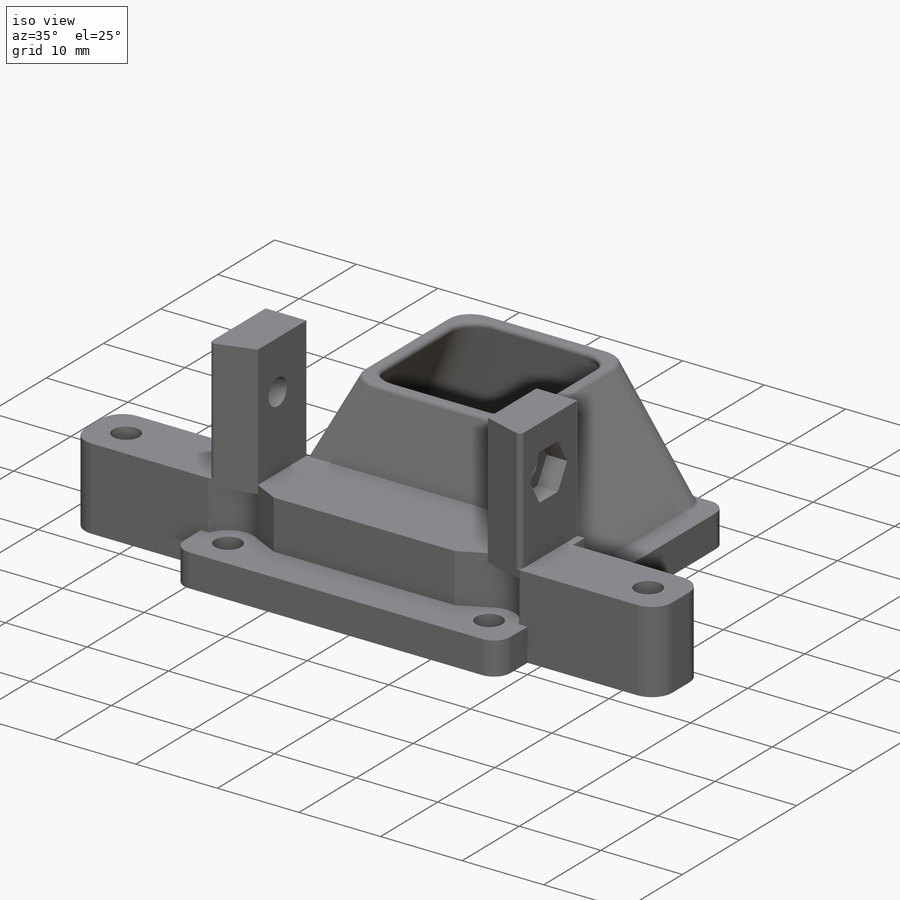
[diagram: iso view]
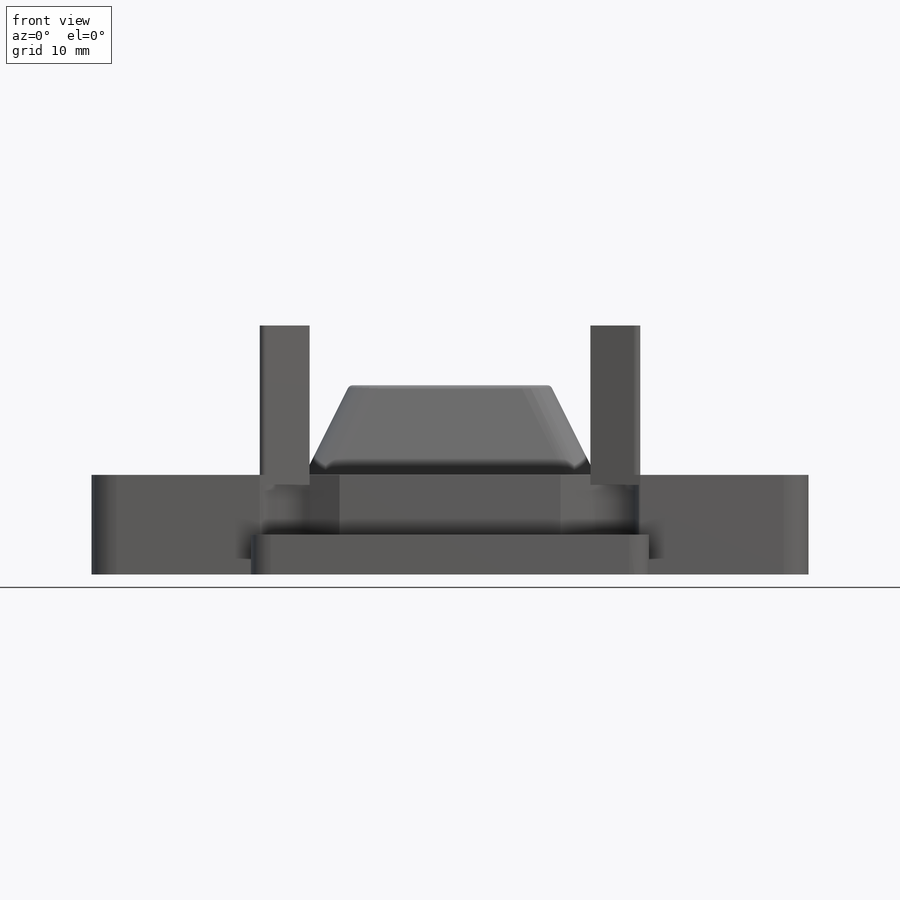
[diagram: front view]
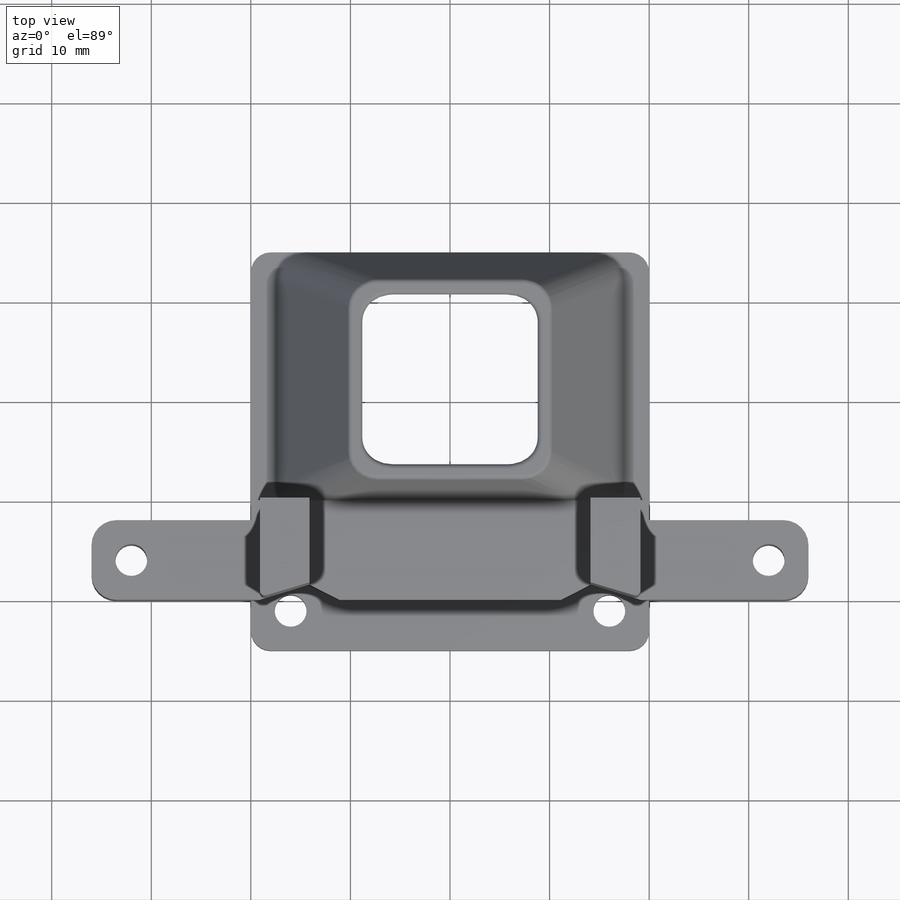
[diagram: top view]
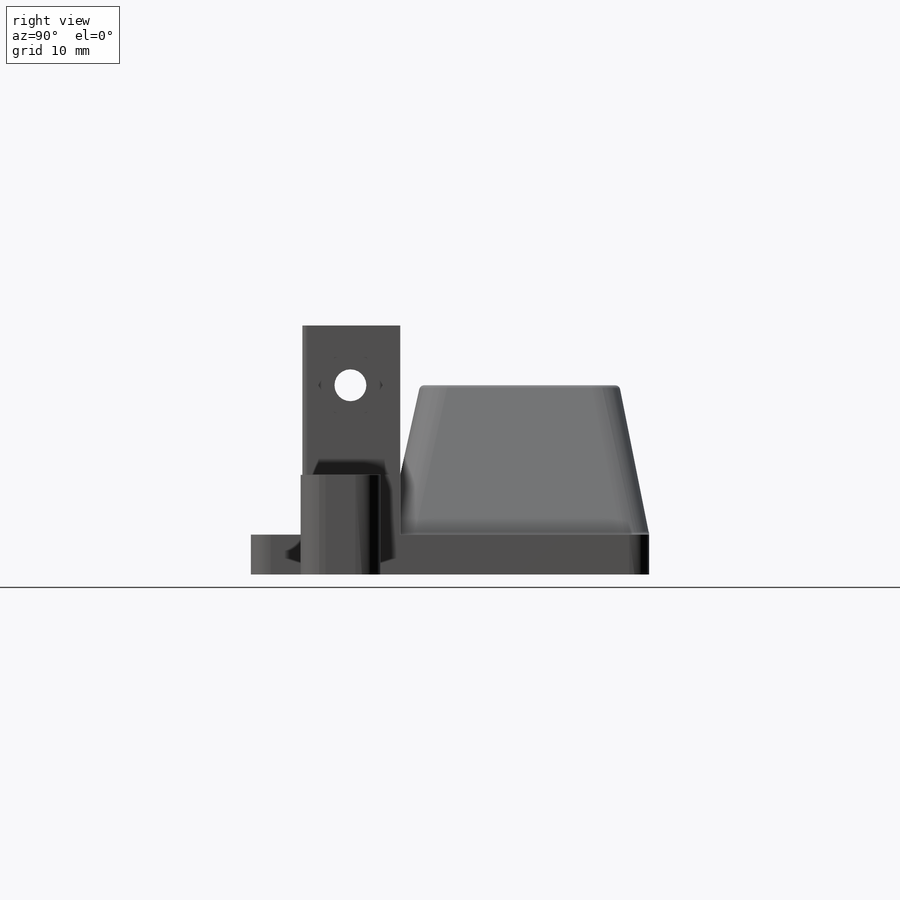
[diagram: right view]
SOLIDWORKS PART (.sldprt)
format: sldprt  version: not decoded by parser v0  size: 656,896 bytes
history: native  units: mm
features: sketch x17, cut_extrude x8, extrude x7, fillet x7, chamfer x4, material x1 (+11 scaffold rows collapsed)
feature tree (55):
  scaffold x11  (default folders/planes/origin — collapsed)
  material  "Material <not specified>"
  sketch  "Sketch1"  dims[D1=28.2mm D2=14.1mm D3=0.0mm D4=15.0mm D5=15.0mm D6=5.0mm D7=5.0mm D8=10.0mm]
  extrude  "Boss-Extrude1"  Depth=10mm
  sketch  "Sketch2"  dims[D1=3.2mm D2=9.0mm D3=5.0mm]
  cut_extrude  "Cut-Extrude1"  [1 undecoded]
  sketch  "Sketch3"  dims[D1=8.0mm]
  cut_extrude  "Cut-Extrude2"  Depth=2.5mm
  sketch  "Sketch4"  dims[D1=5.6mm]
  cut_extrude  "Cut-Extrude3"  Depth=2.5mm
  sketch  "Sketch5"
  extrude  "Boss-Extrude2"  Depth=25mm
  sketch  "Sketch6"
  extrude  "Boss-Extrude3"  Depth=9mm
  sketch  "Sketch8"  dims[D1=0.9mm D2=0.9mm D3=40.0mm]
  extrude  "Boss-Extrude4"  Depth=4mm
  chamfer  "Chamfer3"  Distance=18mm
  chamfer  "Chamfer5"  Distance=9mm
  fillet  "Fillet1"  Radius=2mm
  chamfer  "Chamfer7"  Distance=15mm
  sketch  "Sketch14"  dims[D1=1.6mm D2=1.6mm D3=1.6mm D4=1.6mm]
  sketch  "Sketch15"  dims[D1=1.6mm D2=1.6mm D3=1.6mm D4=0.0mm]
  sketch  "Sketch16"
  cut_extrude  "Cut-Extrude9"  [1 undecoded]
  fillet  "Fillet6"  Radius=3mm
  fillet  "Fillet7"  Radius=3mm
  sketch  "Sketch17"  dims[D1=3.2mm D4=3.2mm D2=4.0mm D3=4.0mm D5=4.0mm D6=4.0mm]
  cut_extrude  "Cut-Extrude10"  [1 undecoded]
  sketch  "Sketch19"  dims[D1=1.5mm D2=1.5mm]
  cut_extrude  "Cut-Extrude11"  [1 undecoded]
  chamfer  "Chamfer8"  Distance=3mm
  fillet  "Fillet9"  Radius=0.5mm
  fillet  "Fillet10"  Radius=0.5mm
  sketch  "Sketch21"
  extrude  "Boss-Extrude5"  Depth=6mm
  sketch  "Sketch22"
  cut_extrude  "Cut-Extrude12"  Depth=5mm
  sketch  "Sketch24"  dims[D1=8.0mm]
  extrude  "Boss-Extrude6"  Depth=16mm
  sketch  "Sketch25"  dims[D1=8.0mm]
  extrude  "Boss-Extrude7"  Depth=16mm
  sketch  "Sketch26"  dims[D1=3.2mm D2=3.2mm D3=4.0mm D4=4.0mm D5=4.0mm D6=4.0mm]
  cut_extrude  "Cut-Extrude13"  [1 undecoded]
  fillet  "Fillet11"  Radius=2.5mm
  fillet  "Fillet12"  Radius=0.5mm
decode coverage: 33 of 43 modeling features carry decoded parameters
note: 5 parameter values undecoded
summary: no parameter record found for 5 features
note: suppression state not decoded; provenance and decode notes live in map.json
